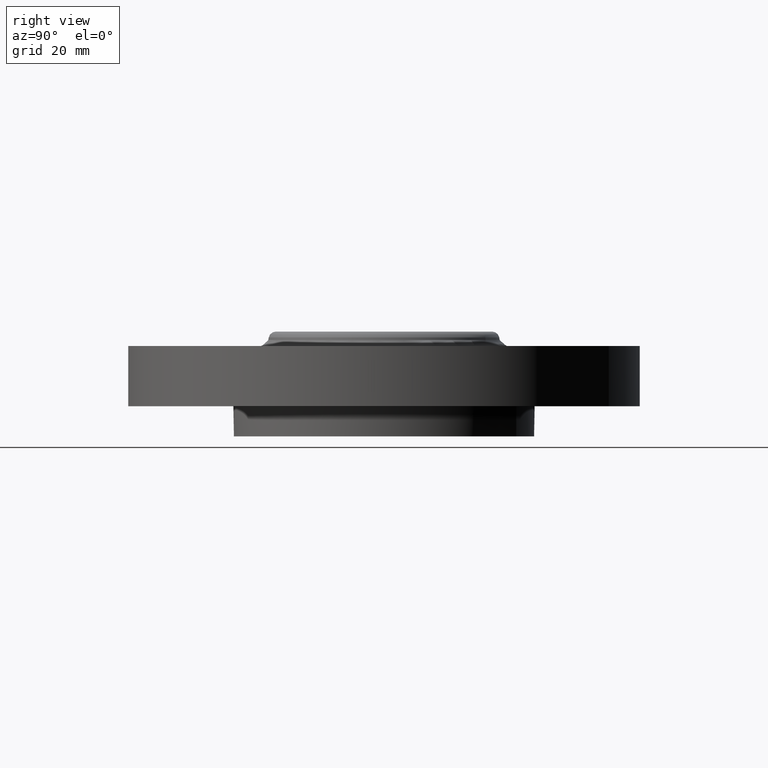
[diagram: clean part render]
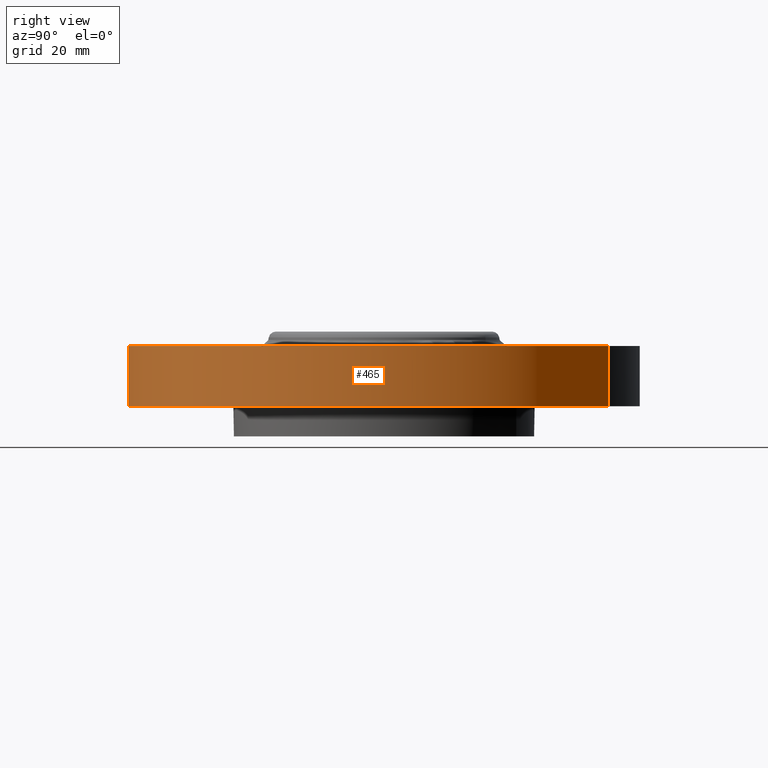
[diagram: same view with one face highlighted and labeled with its STEP entity id]
A machine part, right view. The second image highlights one B-rep face of the part: STEP entity #465.
In plain terms, the highlighted cylindrical surface (partial cylindrical patch) has radius 53.975 mm, axis along (0, 0, -1).
Its self-contained STEP definition (entity closure, byte-faithful):
#319=AXIS2_PLACEMENT_3D('Circle Axis2P3D',#317,#318,$) ;
#426=AXIS2_PLACEMENT_3D('Cylinder Axis2P3D',#423,#424,#425) ;
#456=AXIS2_PLACEMENT_3D('Circle Axis2P3D',#454,#455,$) ;
#312=CARTESIAN_POINT('Vertex',(-1.01877926954,-1.86486294402,1.39870617276E-016)) ;
#314=CARTESIAN_POINT('Vertex',(1.01877926954,1.86486294402,1.39870617276E-016)) ;
#317=CARTESIAN_POINT('Axis2P3D Location',(0.,0.,0.)) ;
#423=CARTESIAN_POINT('Axis2P3D Location',(0.,0.,0.185000000001)) ;
#428=CARTESIAN_POINT('Line Origine',(-1.01877926954,-1.86486294402,0.250000000001)) ;
#432=CARTESIAN_POINT('Vertex',(-1.01877926954,-1.86486294402,0.500000000002)) ;
#439=CARTESIAN_POINT('Vertex',(1.01877926954,1.86486294402,0.500000000002)) ;
#442=CARTESIAN_POINT('Line Origine',(1.01877926954,1.86486294402,0.250000000001)) ;
#454=CARTESIAN_POINT('Axis2P3D Location',(0.,0.,0.500000000002)) ;
#318=DIRECTION('Axis2P3D Direction',(0.,0.,-0.0393700787402)) ;
#424=DIRECTION('Axis2P3D Direction',(0.,0.,-0.0393700787402)) ;
#425=DIRECTION('Axis2P3D XDirection',(0.0188750212049,0.0345504945626,0.)) ;
#429=DIRECTION('Vector Direction',(0.,0.,-0.0393700787402)) ;
#443=DIRECTION('Vector Direction',(0.,0.,-0.0393700787402)) ;
#455=DIRECTION('Axis2P3D Direction',(0.,0.,-0.0393700787402)) ;
#430=VECTOR('Line Direction',#429,0.0393700787402) ;
#444=VECTOR('Line Direction',#443,0.0393700787402) ;
#460=ORIENTED_EDGE('',*,*,#321,.F.) ;
#461=ORIENTED_EDGE('',*,*,#446,.T.) ;
#462=ORIENTED_EDGE('',*,*,#458,.T.) ;
#463=ORIENTED_EDGE('',*,*,#434,.F.) ;
#465=ADVANCED_FACE('PartBody',(#464),#427,.T.) ;
#320=CIRCLE('generated circle',#319,2.12500000001) ;
#457=CIRCLE('generated circle',#456,2.12500000001) ;
#427=CYLINDRICAL_SURFACE('generated cylinder',#426,2.12500000001) ;
#321=EDGE_CURVE('',#315,#313,#320,.T.) ;
#434=EDGE_CURVE('',#313,#433,#431,.F.) ;
#446=EDGE_CURVE('',#315,#440,#445,.F.) ;
#458=EDGE_CURVE('',#440,#433,#457,.T.) ;
#459=EDGE_LOOP('',(#460,#461,#462,#463)) ;
#464=FACE_OUTER_BOUND('',#459,.T.) ;
#431=LINE('Line',#428,#430) ;
#445=LINE('Line',#442,#444) ;
#313=VERTEX_POINT('',#312) ;
#315=VERTEX_POINT('',#314) ;
#433=VERTEX_POINT('',#432) ;
#440=VERTEX_POINT('',#439) ;